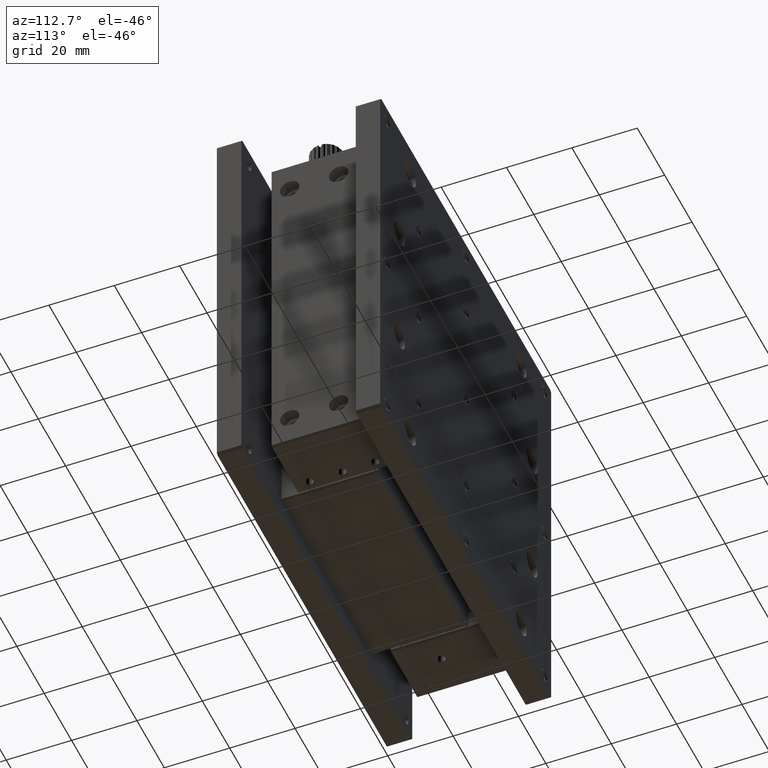
[diagram: clean part render]
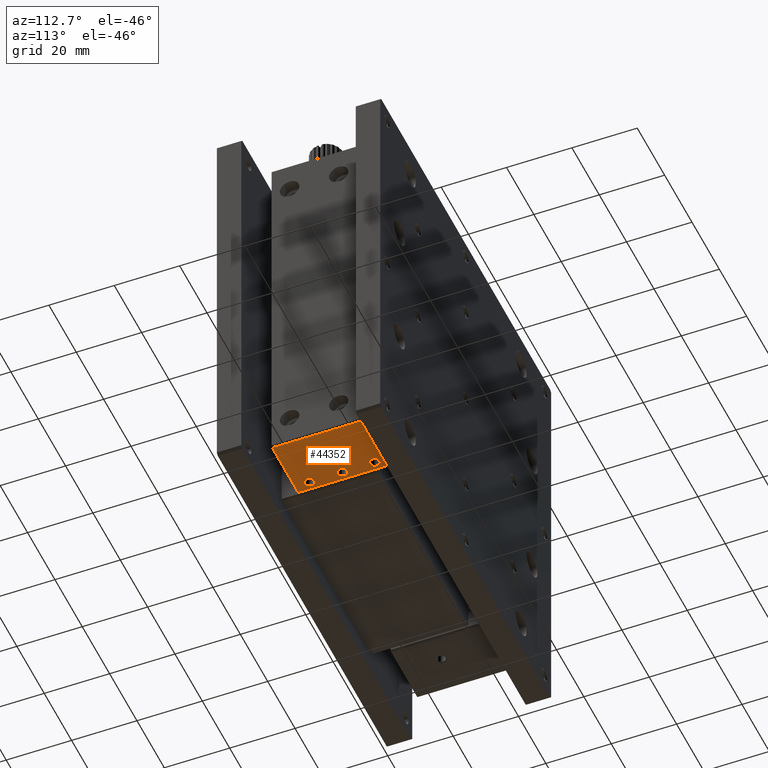
[diagram: same view with one face highlighted and labeled with its STEP entity id]
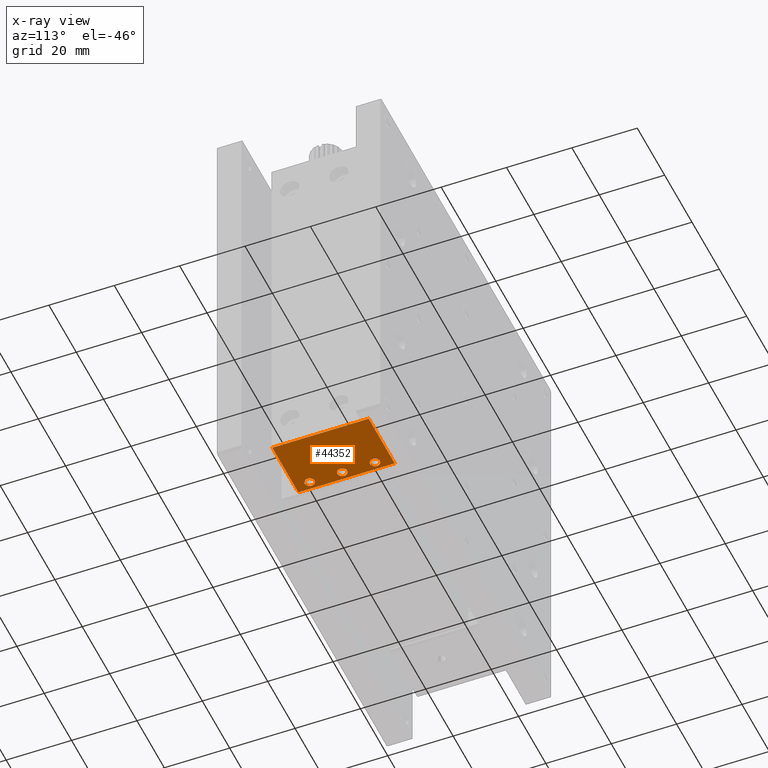
[diagram: x-ray of the same camera — body ghosted, the highlighted face saturated]
A machine part, auxiliary view. The second image highlights one B-rep face of the part: STEP entity #44352.
The next image is the same camera in x-ray: the body ghosted, the highlighted face saturated — about 0% of this face is hidden behind the body in this view.
In plain terms, the highlighted planar face has unit normal (0, 0, -1).
Its self-contained STEP definition (entity closure, byte-faithful):
#189 = EDGE_LOOP ( 'NONE', ( #30295, #25013, #10684, #30699 ) ) ;
#1483 = EDGE_CURVE ( 'NONE', #7376, #45803, #51121, .T. ) ;
#1612 = DIRECTION ( 'NONE',  ( 0.000000000000000000, 1.000000000000000000, 0.000000000000000000 ) ) ;
#1684 = CARTESIAN_POINT ( 'NONE',  ( 115.5000000000000000, 13.00000000000000533, -118.5000000000000142 ) ) ;
#2111 = PLANE ( 'NONE',  #47593 ) ;
#2365 = VECTOR ( 'NONE', #1612, 1000.000000000000000 ) ;
#2582 = CARTESIAN_POINT ( 'NONE',  ( 115.5000000000000000, 42.50000000000000711, -118.5000000000000142 ) ) ;
#2979 = CIRCLE ( 'NONE', #36397, 1.500000000031836977 ) ;
#3829 = LINE ( 'NONE', #43600, #35740 ) ;
#5079 = DIRECTION ( 'NONE',  ( -1.000000000000000000, 0.000000000000000000, 0.000000000000000000 ) ) ;
#5318 = DIRECTION ( 'NONE',  ( 0.000000000000000000, 0.000000000000000000, -1.000000000000000000 ) ) ;
#7118 = VERTEX_POINT ( 'NONE', #1684 ) ;
#7376 = VERTEX_POINT ( 'NONE', #29547 ) ;
#9291 = CARTESIAN_POINT ( 'NONE',  ( 0.000000000000000000, 42.50000000000000000, -118.5000000000000142 ) ) ;
#10684 = ORIENTED_EDGE ( 'NONE', *, *, #1483, .T. ) ;
#11429 = CARTESIAN_POINT ( 'NONE',  ( 99.00000000000000000, 37.50000000000000711, -118.4999999999831743 ) ) ;
#11817 = CARTESIAN_POINT ( 'NONE',  ( 99.00000000000000000, 27.50000000000000355, -118.4999999999831743 ) ) ;
#13019 = EDGE_CURVE ( 'NONE', #38185, #38185, #32827, .T. ) ;
#13224 = AXIS2_PLACEMENT_3D ( 'NONE', #11429, #36900, #31573 ) ;
#13941 = CARTESIAN_POINT ( 'NONE',  ( 96.50000000000001421, 13.00000000000000533, -118.5000000000000284 ) ) ;
#14466 = FACE_OUTER_BOUND ( 'NONE', #189, .T. ) ;
#16907 = DIRECTION ( 'NONE',  ( -0.000000000000000000, -0.000000000000000000, 1.000000000000000000 ) ) ;
#17003 = CARTESIAN_POINT ( 'NONE',  ( 97.49999999996816769, 27.50000000000000355, -118.4999999999831743 ) ) ;
#19494 = VERTEX_POINT ( 'NONE', #13941 ) ;
#21461 = CARTESIAN_POINT ( 'NONE',  ( 99.00000000000000000, 17.50000000000000000, -118.4999999999831743 ) ) ;
#22697 = DIRECTION ( 'NONE',  ( -1.000000000000000000, 0.000000000000000000, -0.000000000000000000 ) ) ;
#25013 = ORIENTED_EDGE ( 'NONE', *, *, #48306, .T. ) ;
#26094 = EDGE_CURVE ( 'NONE', #45803, #7118, #3829, .T. ) ;
#26466 = LINE ( 'NONE', #47105, #34591 ) ;
#26554 = DIRECTION ( 'NONE',  ( -1.000000000000000000, 0.000000000000000000, -0.000000000000000000 ) ) ;
#27783 = CIRCLE ( 'NONE', #13224, 1.500000000031836977 ) ;
#28171 = VERTEX_POINT ( 'NONE', #35963 ) ;
#29547 = CARTESIAN_POINT ( 'NONE',  ( 96.50000000000000000, 42.50000000000000711, -118.5000000000000142 ) ) ;
#30295 = ORIENTED_EDGE ( 'NONE', *, *, #40602, .T. ) ;
#30298 = FACE_BOUND ( 'NONE', #35715, .T. ) ;
#30571 = FACE_BOUND ( 'NONE', #40073, .T. ) ;
#30699 = ORIENTED_EDGE ( 'NONE', *, *, #26094, .T. ) ;
#30862 = LINE ( 'NONE', #34608, #2365 ) ;
#30887 = ORIENTED_EDGE ( 'NONE', *, *, #34875, .T. ) ;
#31573 = DIRECTION ( 'NONE',  ( -1.000000000000000000, 0.000000000000000000, 0.000000000000000000 ) ) ;
#32274 = EDGE_LOOP ( 'NONE', ( #34363 ) ) ;
#32827 = CIRCLE ( 'NONE', #52530, 1.500000000031836977 ) ;
#34363 = ORIENTED_EDGE ( 'NONE', *, *, #13019, .T. ) ;
#34591 = VECTOR ( 'NONE', #22697, 1000.000000000000000 ) ;
#34608 = CARTESIAN_POINT ( 'NONE',  ( 96.50000000000000000, 13.00000000000000533, -118.5000000000000142 ) ) ;
#34875 = EDGE_CURVE ( 'NONE', #28171, #28171, #27783, .T. ) ;
#35061 = DIRECTION ( 'NONE',  ( 1.000000000000000000, 0.000000000000000000, -0.000000000000000000 ) ) ;
#35602 = EDGE_CURVE ( 'NONE', #44024, #44024, #2979, .T. ) ;
#35715 = EDGE_LOOP ( 'NONE', ( #53090 ) ) ;
#35740 = VECTOR ( 'NONE', #36590, 1000.000000000000000 ) ;
#35963 = CARTESIAN_POINT ( 'NONE',  ( 97.49999999996816769, 37.50000000000000711, -118.4999999999831743 ) ) ;
#36397 = AXIS2_PLACEMENT_3D ( 'NONE', #21461, #16907, #5079 ) ;
#36590 = DIRECTION ( 'NONE',  ( -0.000000000000000000, -1.000000000000000000, -0.000000000000000000 ) ) ;
#36900 = DIRECTION ( 'NONE',  ( -0.000000000000000000, -0.000000000000000000, 1.000000000000000000 ) ) ;
#37811 = CARTESIAN_POINT ( 'NONE',  ( 115.5000000000000000, 13.00000000000000533, -118.5000000000000142 ) ) ;
#38185 = VERTEX_POINT ( 'NONE', #17003 ) ;
#39639 = VECTOR ( 'NONE', #35061, 1000.000000000000000 ) ;
#40011 = DIRECTION ( 'NONE',  ( -0.000000000000000000, -0.000000000000000000, 1.000000000000000000 ) ) ;
#40073 = EDGE_LOOP ( 'NONE', ( #30887 ) ) ;
#40602 = EDGE_CURVE ( 'NONE', #7118, #19494, #26466, .T. ) ;
#42372 = FACE_BOUND ( 'NONE', #32274, .T. ) ;
#43600 = CARTESIAN_POINT ( 'NONE',  ( 115.5000000000000000, 13.00000000000000533, -118.5000000000000142 ) ) ;
#44024 = VERTEX_POINT ( 'NONE', #48556 ) ;
#44352 = ADVANCED_FACE ( 'NONE', ( #14466, #30571, #30298, #42372 ), #2111, .T. ) ;
#45079 = DIRECTION ( 'NONE',  ( -1.000000000000000000, 0.000000000000000000, 0.000000000000000000 ) ) ;
#45803 = VERTEX_POINT ( 'NONE', #2582 ) ;
#47105 = CARTESIAN_POINT ( 'NONE',  ( 115.5000000000000000, 13.00000000000000533, -118.5000000000000142 ) ) ;
#47593 = AXIS2_PLACEMENT_3D ( 'NONE', #37811, #5318, #26554 ) ;
#48306 = EDGE_CURVE ( 'NONE', #19494, #7376, #30862, .T. ) ;
#48556 = CARTESIAN_POINT ( 'NONE',  ( 97.49999999996816769, 17.50000000000000000, -118.4999999999831743 ) ) ;
#51121 = LINE ( 'NONE', #9291, #39639 ) ;
#52530 = AXIS2_PLACEMENT_3D ( 'NONE', #11817, #40011, #45079 ) ;
#53090 = ORIENTED_EDGE ( 'NONE', *, *, #35602, .T. ) ;